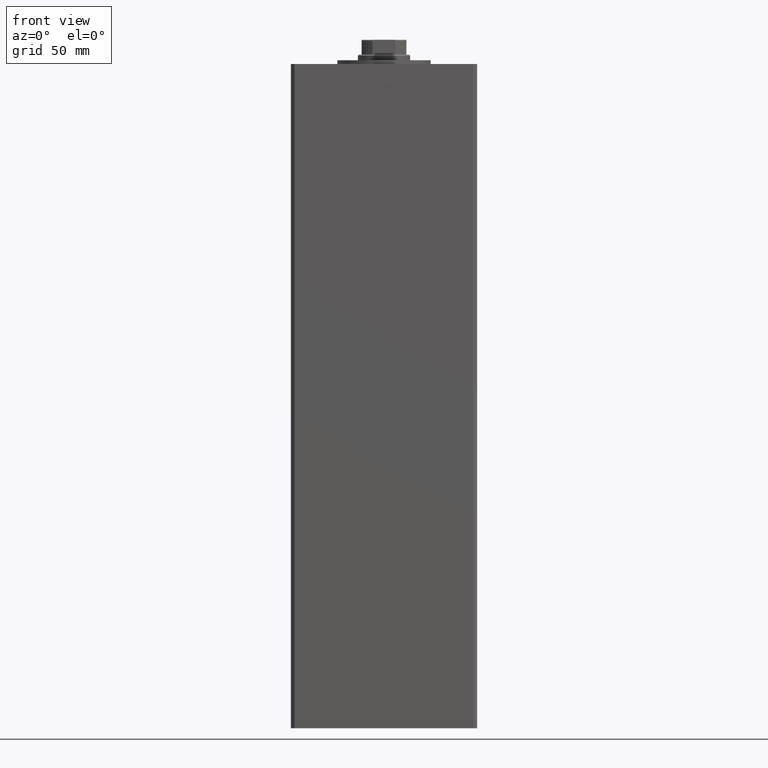
[diagram: clean part render]
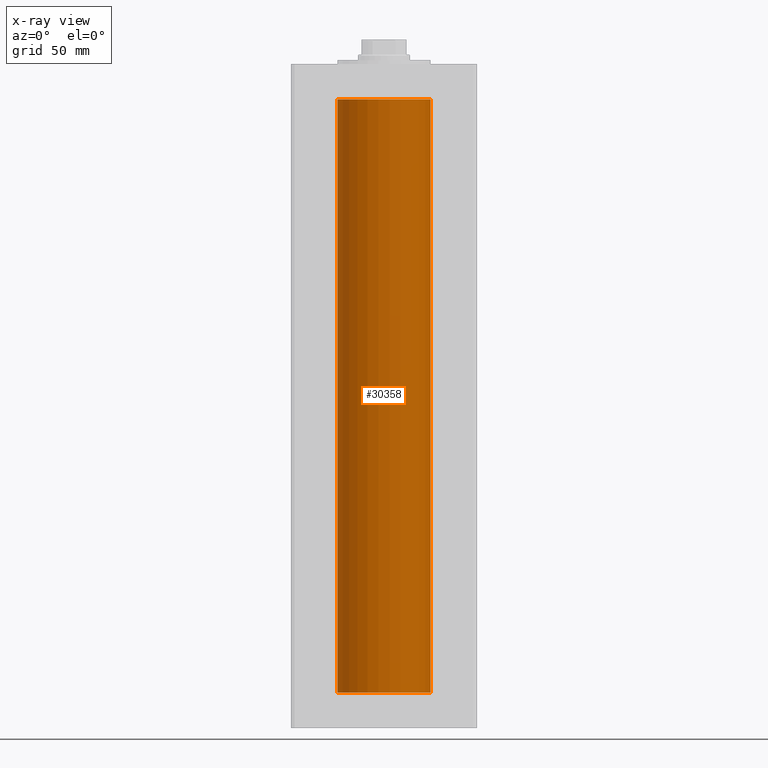
[diagram: x-ray — body ghosted, one internal face saturated and labeled with its STEP entity id]
A machine part, front view, then the same camera in x-ray: the body is ghosted and one INTERNAL B-rep face — a face not visible from any outside direction — is saturated and labeled: STEP entity #30358.
In plain terms, the highlighted cylindrical surface (partial cylindrical patch) has radius 25 mm, axis along (-0, -0, -1).
Its self-contained STEP definition (entity closure, byte-faithful):
#4666 = ORIENTED_EDGE ( 'NONE', *, *, #50883, .T. ) ;
#5244 = EDGE_CURVE ( 'NONE', #27199, #43767, #9042, .T. ) ;
#5732 = CARTESIAN_POINT ( 'NONE',  ( -25.00000000000000000, 0.000000000000000000, 318.5000000000000000 ) ) ;
#5799 = VECTOR ( 'NONE', #43945, 1000.000000000000000 ) ;
#8347 = AXIS2_PLACEMENT_3D ( 'NONE', #12316, #40545, #36579 ) ;
#9042 = CIRCLE ( 'NONE', #20826, 25.00000000000000000 ) ;
#11764 = CARTESIAN_POINT ( 'NONE',  ( -25.00000000000000000, 0.000000000000000000, 318.5000000000000000 ) ) ;
#12031 = CARTESIAN_POINT ( 'NONE',  ( 25.00000000000000000, 3.061616997868383043E-15, 318.5000000000000000 ) ) ;
#12316 = CARTESIAN_POINT ( 'NONE',  ( 0.000000000000000000, 0.000000000000000000, 0.000000000000000000 ) ) ;
#12813 = VERTEX_POINT ( 'NONE', #16560 ) ;
#12999 = LINE ( 'NONE', #11764, #5799 ) ;
#13120 = VERTEX_POINT ( 'NONE', #21510 ) ;
#13512 = FACE_OUTER_BOUND ( 'NONE', #38427, .T. ) ;
#14532 = DIRECTION ( 'NONE',  ( -0.000000000000000000, 0.000000000000000000, 1.000000000000000000 ) ) ;
#16560 = CARTESIAN_POINT ( 'NONE',  ( 25.00000000000000000, 3.061616997868383043E-15, 0.000000000000000000 ) ) ;
#20826 = AXIS2_PLACEMENT_3D ( 'NONE', #34311, #14532, #39059 ) ;
#20905 = CARTESIAN_POINT ( 'NONE',  ( 0.000000000000000000, 0.000000000000000000, 318.5000000000000000 ) ) ;
#21328 = ORIENTED_EDGE ( 'NONE', *, *, #26428, .F. ) ;
#21510 = CARTESIAN_POINT ( 'NONE',  ( -25.00000000000000000, 0.000000000000000000, 0.000000000000000000 ) ) ;
#24160 = DIRECTION ( 'NONE',  ( -0.000000000000000000, -0.000000000000000000, -1.000000000000000000 ) ) ;
#24371 = CIRCLE ( 'NONE', #8347, 25.00000000000000000 ) ;
#26428 = EDGE_CURVE ( 'NONE', #27199, #13120, #12999, .T. ) ;
#27109 = LINE ( 'NONE', #12031, #44971 ) ;
#27199 = VERTEX_POINT ( 'NONE', #5732 ) ;
#27844 = AXIS2_PLACEMENT_3D ( 'NONE', #20905, #45948, #33050 ) ;
#28039 = EDGE_CURVE ( 'NONE', #13120, #12813, #24371, .T. ) ;
#29086 = CYLINDRICAL_SURFACE ( 'NONE', #27844, 25.00000000000000000 ) ;
#30358 = ADVANCED_FACE ( 'NONE', ( #13512 ), #29086, .F. ) ;
#33050 = DIRECTION ( 'NONE',  ( -1.000000000000000000, 0.000000000000000000, 0.000000000000000000 ) ) ;
#33269 = ORIENTED_EDGE ( 'NONE', *, *, #28039, .F. ) ;
#34311 = CARTESIAN_POINT ( 'NONE',  ( 0.000000000000000000, 0.000000000000000000, 318.5000000000000000 ) ) ;
#36579 = DIRECTION ( 'NONE',  ( 1.000000000000000000, 0.000000000000000000, 0.000000000000000000 ) ) ;
#38427 = EDGE_LOOP ( 'NONE', ( #46951, #4666, #33269, #21328 ) ) ;
#39059 = DIRECTION ( 'NONE',  ( 1.000000000000000000, 0.000000000000000000, 0.000000000000000000 ) ) ;
#40545 = DIRECTION ( 'NONE',  ( -0.000000000000000000, 0.000000000000000000, 1.000000000000000000 ) ) ;
#43767 = VERTEX_POINT ( 'NONE', #47050 ) ;
#43945 = DIRECTION ( 'NONE',  ( -0.000000000000000000, -0.000000000000000000, -1.000000000000000000 ) ) ;
#44971 = VECTOR ( 'NONE', #24160, 1000.000000000000000 ) ;
#45948 = DIRECTION ( 'NONE',  ( -0.000000000000000000, -0.000000000000000000, -1.000000000000000000 ) ) ;
#46951 = ORIENTED_EDGE ( 'NONE', *, *, #5244, .T. ) ;
#47050 = CARTESIAN_POINT ( 'NONE',  ( 25.00000000000000000, 3.061616997868383043E-15, 318.5000000000000000 ) ) ;
#50883 = EDGE_CURVE ( 'NONE', #43767, #12813, #27109, .T. ) ;